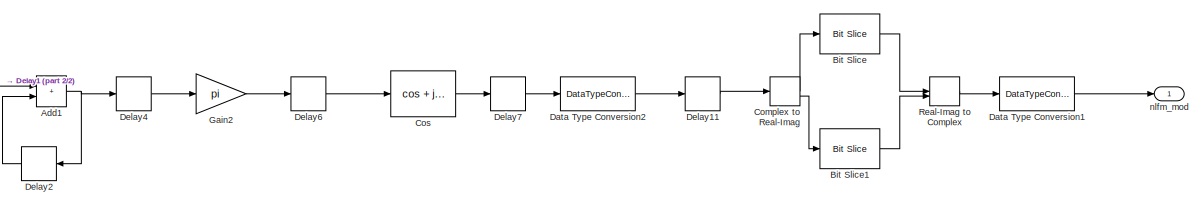
[diagram: root canvas - part 1/2, top right region]
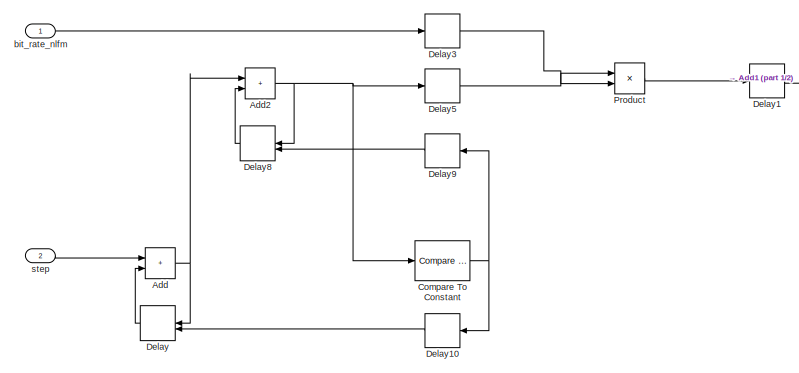
[diagram: root canvas - part 2/2, left side, full height]
MODEL slx_5dd3848bb6ac
KIND model
CONFIG AbsTol = auto
CONFIG EnableMultiTasking = off
CONFIG FixedStep = 5.3333333333333331e-09
CONFIG MaxStep = auto
CONFIG MinStep = auto
CONFIG RelTol = 1e-3
CONFIG SampleTimeConstraint = Unconstrained
CONFIG SolverName = FixedStepAuto
CONFIG StartTime = 0.0
CONFIG StopTime = 10.0
BLOCK [Sum] Add
  IconShape = rectangular
  OutDataTypeStr = fixdt(1,24, 23)
BLOCK [Sum] Add1
  AccumDataTypeStr = Inherit: Same as first input
  IconShape = rectangular
  OutDataTypeStr = Inherit: Same as first input
BLOCK [Sum] Add2
  IconShape = rectangular
  OutDataTypeStr = fixdt(1,24, 23)
  SaturateOnIntegerOverflow = on
BLOCK [Reference] Bit Slice  REF=hdlsllib/Logic and Bit
Operations/Bit Slice
  SourceBlock = hdlsllib/Logic and Bit\nOperations/Bit Slice
  SourceType = Bit Slice
BLOCK [Reference] Bit Slice1  REF=hdlsllib/Logic and Bit
Operations/Bit Slice
  SourceBlock = hdlsllib/Logic and Bit\nOperations/Bit Slice
  SourceType = Bit Slice
BLOCK [Reference] Compare To Constant  REF=simulink/Logic and Bit
Operations/Compare
To Constant
  SourceBlock = simulink/Logic and Bit\nOperations/Compare\nTo Constant
  SourceType = Compare To Constant
BLOCK [ComplexToRealImag] Complex to Real-Imag
BLOCK [Trigonometry] Cos
  ApproximationMethod = CORDIC
  Operator = cos + jsin
BLOCK [DataTypeConversion] Data Type Conversion1
  OutDataTypeStr = int16
  RndMeth = Floor
  SaturateOnIntegerOverflow = off
BLOCK [DataTypeConversion] Data Type Conversion2
  OutDataTypeStr = fixdt(1,16, 15)
  RndMeth = Nearest
BLOCK [Delay] Delay
  DelayLength = 1
  ExternalReset = Level
  InputPortMap = u0,r5
  NameLocation = top
BLOCK [Delay] Delay1
  InputPortMap = u0
BLOCK [Delay] Delay10
  DelayLength = 1
  InputPortMap = u0
  SampleTime = 1/187.5e6
BLOCK [Delay] Delay11
  DelayLength = 1
  InputPortMap = u0
BLOCK [Delay] Delay2
  DelayLength = 1
  InputPortMap = u0
  NameLocation = top
BLOCK [Delay] Delay3
  DelayLength = 1
  InputPortMap = u0
  SampleTime = 1/187.5e6
BLOCK [Delay] Delay4
  DelayLength = 1
  InputPortMap = u0
BLOCK [Delay] Delay5
  DelayLength = 1
  InputPortMap = u0
  SampleTime = 1/187.5e6
BLOCK [Delay] Delay6
  InputPortMap = u0
BLOCK [Delay] Delay7
  DelayLength = 11
  InputPortMap = u0
BLOCK [Delay] Delay8
  DelayLength = 1
  ExternalReset = Level
  InitialCondition = -1
  InputPortMap = u0,r5
  NameLocation = top
BLOCK [Delay] Delay9
  DelayLength = 1
  InputPortMap = u0
  SampleTime = 1/187.5e6
BLOCK [Gain] Gain2
  Gain = pi
  OutDataTypeStr = fixdt(1,24,20)
BLOCK [Product] Product
  OutDataTypeStr = Inherit: Same as first input
BLOCK [RealImagToComplex] Real-Imag to Complex
BLOCK [Inport] bit_rate_nlfm
  OutDataTypeStr = fixdt(1,24,23)
  PortDimensions = 1
  SampleTime = [5.3333333333333331e-09,0]
  SamplingMode = Sample based
  SignalType = real
BLOCK [Outport] nlfm_mod
  OutDataTypeStr = int16
  PortDimensions = 1
  SampleTime = [5.3333333333333331e-09,0]
  SamplingMode = Sample based
  SignalType = complex
BLOCK [Inport] step
  OutDataTypeStr = fixdt(1,24,23)
  Port = 2
  PortDimensions = 1
  SampleTime = [5.3333333333333331e-09,0]
  SamplingMode = Sample based
  SignalType = real
NET Add1:1 -> Delay2:1, Delay4:1
NET Add2:1 -> Compare To Constant:1, Delay5:1, Delay8:1
NET Add:1 -> Add2:1, Delay:1
LINE Bit Slice1:1 -> Real-Imag to Complex:2
LINE Bit Slice:1 -> Real-Imag to Complex:1
NET Compare To Constant:1 -> Delay10:1, Delay9:1
LINE Complex to Real-Imag:1 -> Bit Slice:1
LINE Complex to Real-Imag:2 -> Bit Slice1:1
LINE Cos:1 -> Delay7:1
LINE Data Type Conversion1:1 -> nlfm_mod:1
LINE Data Type Conversion2:1 -> Delay11:1
LINE Delay10:1 -> Delay:2
LINE Delay11:1 -> Complex to Real-Imag:1
LINE Delay1:1 -> Add1:1
LINE Delay2:1 -> Add1:2
LINE Delay3:1 -> Product:2
LINE Delay4:1 -> Gain2:1
LINE Delay5:1 -> Product:1
LINE Delay6:1 -> Cos:1
LINE Delay7:1 -> Data Type Conversion2:1
LINE Delay8:1 -> Add2:2
LINE Delay9:1 -> Delay8:2
LINE Delay:1 -> Add:2
LINE Gain2:1 -> Delay6:1
LINE Product:1 -> Delay1:1
LINE Real-Imag to Complex:1 -> Data Type Conversion1:1
LINE bit_rate_nlfm:1 -> Delay3:1
LINE step:1 -> Add:1
note: NET lines group one-source signal fan-out (src -> all destinations, sorted); 1:1 wires keep LINE
